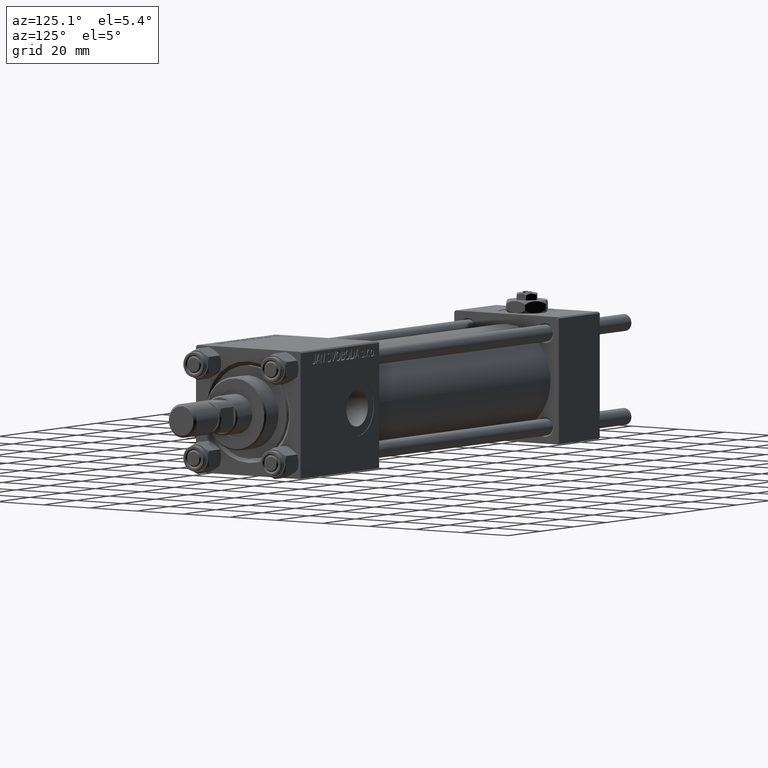
[diagram: clean part render]
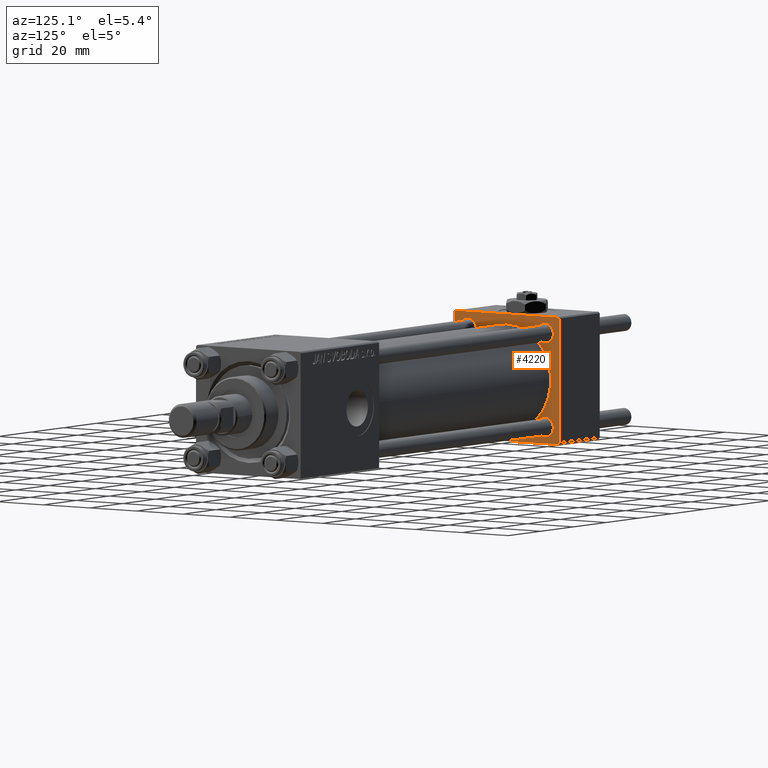
[diagram: same view with one face highlighted and labeled with its STEP entity id]
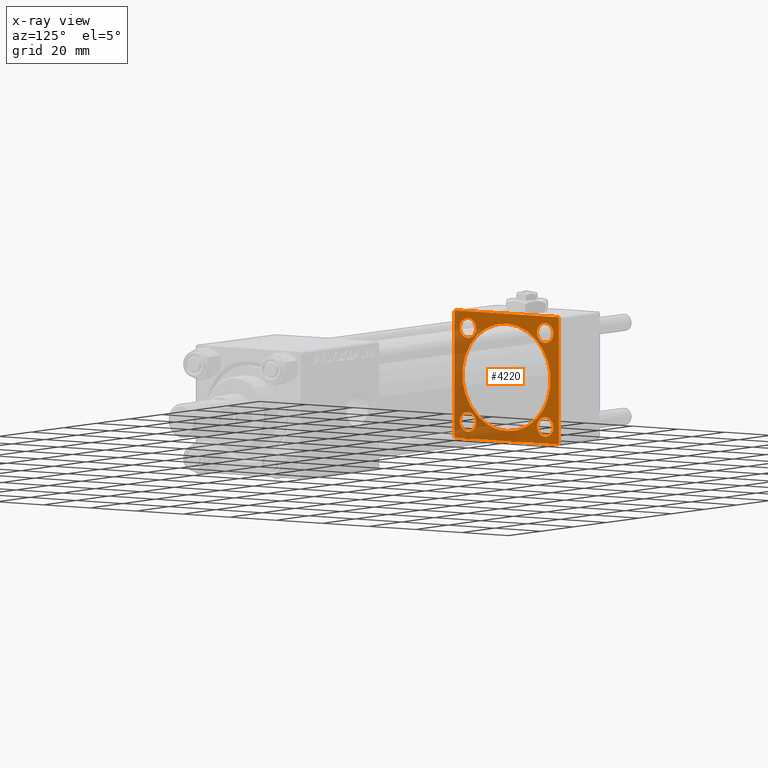
[diagram: x-ray of the same camera — body ghosted, the highlighted face saturated]
A machine part, auxiliary view. The second image highlights one B-rep face of the part: STEP entity #4220.
The next image is the same camera in x-ray: the body ghosted, the highlighted face saturated — about 38% of this face is hidden behind the body in this view.
In plain terms, the highlighted planar face has unit normal (-1, 0, 0).
Its self-contained STEP definition (entity closure, byte-faithful):
#280 = EDGE_LOOP ( 'NONE', ( #12383, #11979 ) ) ;
#374 = FACE_BOUND ( 'NONE', #43989, .T. ) ;
#496 = CARTESIAN_POINT ( 'NONE',  ( 25.00000000000000000, 22.50000000000000000, 22.50000000000000355 ) ) ;
#846 = VERTEX_POINT ( 'NONE', #34807 ) ;
#862 = ORIENTED_EDGE ( 'NONE', *, *, #11268, .T. ) ;
#982 = DIRECTION ( 'NONE',  ( 0.000000000000000000, 0.000000000000000000, 1.000000000000000000 ) ) ;
#1336 = AXIS2_PLACEMENT_3D ( 'NONE', #20836, #17651, #37419 ) ;
#1665 = AXIS2_PLACEMENT_3D ( 'NONE', #38598, #34899, #13846 ) ;
#2818 = VERTEX_POINT ( 'NONE', #5924 ) ;
#3339 = DIRECTION ( 'NONE',  ( 0.000000000000000000, 0.000000000000000000, 1.000000000000000000 ) ) ;
#3844 = ORIENTED_EDGE ( 'NONE', *, *, #43482, .T. ) ;
#3986 = VECTOR ( 'NONE', #14961, 1000.000000000000000 ) ;
#4042 = DIRECTION ( 'NONE',  ( -0.000000000000000000, 0.000000000000000000, 1.000000000000000000 ) ) ;
#4220 = ADVANCED_FACE ( 'NONE', ( #16174, #51979, #8540, #44875, #374, #24607 ), #28019, .F. ) ;
#4235 = CARTESIAN_POINT ( 'NONE',  ( 25.00000000000000000, 16.59999999999999787, 16.60000000000000497 ) ) ;
#4548 = EDGE_LOOP ( 'NONE', ( #46990, #14399 ) ) ;
#4921 = DIRECTION ( 'NONE',  ( -1.000000000000000000, 0.000000000000000000, -0.000000000000000000 ) ) ;
#5239 = EDGE_CURVE ( 'NONE', #22824, #40352, #10704, .T. ) ;
#5684 = AXIS2_PLACEMENT_3D ( 'NONE', #37840, #17557, #46519 ) ;
#5924 = CARTESIAN_POINT ( 'NONE',  ( 25.00000000000000000, -16.59999999999999076, -13.10000000000003162 ) ) ;
#6034 = CARTESIAN_POINT ( 'NONE',  ( 25.00000000000000000, 16.59999999999999787, 13.10000000000000142 ) ) ;
#6750 = VERTEX_POINT ( 'NONE', #8268 ) ;
#6930 = VERTEX_POINT ( 'NONE', #43768 ) ;
#7306 = AXIS2_PLACEMENT_3D ( 'NONE', #40143, #16431, #4042 ) ;
#7399 = DIRECTION ( 'NONE',  ( -1.000000000000000000, 0.000000000000000000, -0.000000000000000000 ) ) ;
#8268 = CARTESIAN_POINT ( 'NONE',  ( 24.99999999999999289, 2.326828918379970970E-15, -19.00000000000000000 ) ) ;
#8282 = DIRECTION ( 'NONE',  ( 0.000000000000000000, 0.000000000000000000, 1.000000000000000000 ) ) ;
#8540 = FACE_BOUND ( 'NONE', #4548, .T. ) ;
#9147 = CARTESIAN_POINT ( 'NONE',  ( 25.00000000000000000, -16.59999999999999076, -16.60000000000000853 ) ) ;
#9365 = CARTESIAN_POINT ( 'NONE',  ( 25.00000000000000000, 21.99999999999999289, 22.50000000000000355 ) ) ;
#9406 = DIRECTION ( 'NONE',  ( 0.000000000000000000, -0.7071067811865474617, 0.7071067811865474617 ) ) ;
#9698 = CARTESIAN_POINT ( 'NONE',  ( 24.99999999999999289, 0.000000000000000000, 19.00000000000000000 ) ) ;
#9810 = EDGE_CURVE ( 'NONE', #40352, #22824, #47002, .T. ) ;
#9893 = ORIENTED_EDGE ( 'NONE', *, *, #5239, .T. ) ;
#10703 = EDGE_LOOP ( 'NONE', ( #37130, #3844, #21534, #862, #15850, #15481, #21704, #33753 ) ) ;
#10704 = CIRCLE ( 'NONE', #40141, 3.500000000000003109 ) ;
#11268 = EDGE_CURVE ( 'NONE', #13096, #47992, #21769, .T. ) ;
#11404 = CARTESIAN_POINT ( 'NONE',  ( 25.00000000000000000, 22.50000000000000000, -21.99999999999998224 ) ) ;
#11851 = ORIENTED_EDGE ( 'NONE', *, *, #20076, .T. ) ;
#11979 = ORIENTED_EDGE ( 'NONE', *, *, #37110, .T. ) ;
#12383 = ORIENTED_EDGE ( 'NONE', *, *, #27742, .T. ) ;
#12876 = CIRCLE ( 'NONE', #17082, 3.499999999999978684 ) ;
#13096 = VERTEX_POINT ( 'NONE', #26777 ) ;
#13625 = CIRCLE ( 'NONE', #43061, 3.500000000000003109 ) ;
#13846 = DIRECTION ( 'NONE',  ( 0.000000000000000000, 0.000000000000000000, 1.000000000000000000 ) ) ;
#14028 = DIRECTION ( 'NONE',  ( 0.000000000000000000, 0.000000000000000000, -1.000000000000000000 ) ) ;
#14399 = ORIENTED_EDGE ( 'NONE', *, *, #21898, .T. ) ;
#14953 = CARTESIAN_POINT ( 'NONE',  ( 25.00000000000000000, -22.50000000000000000, 22.00000000000000000 ) ) ;
#14961 = DIRECTION ( 'NONE',  ( 0.000000000000000000, -1.000000000000000000, -2.312964634635742957E-16 ) ) ;
#15201 = DIRECTION ( 'NONE',  ( -1.000000000000000000, 0.000000000000000000, -0.000000000000000000 ) ) ;
#15257 = DIRECTION ( 'NONE',  ( 0.000000000000000000, 0.000000000000000000, -1.000000000000000000 ) ) ;
#15293 = VERTEX_POINT ( 'NONE', #14953 ) ;
#15481 = ORIENTED_EDGE ( 'NONE', *, *, #36544, .T. ) ;
#15771 = VERTEX_POINT ( 'NONE', #22799 ) ;
#15826 = DIRECTION ( 'NONE',  ( 0.000000000000000000, 0.000000000000000000, 1.000000000000000000 ) ) ;
#15850 = ORIENTED_EDGE ( 'NONE', *, *, #31511, .T. ) ;
#16174 = FACE_BOUND ( 'NONE', #280, .T. ) ;
#16296 = LINE ( 'NONE', #496, #26524 ) ;
#16322 = VERTEX_POINT ( 'NONE', #26305 ) ;
#16431 = DIRECTION ( 'NONE',  ( -1.000000000000000000, 0.000000000000000000, -0.000000000000000000 ) ) ;
#17082 = AXIS2_PLACEMENT_3D ( 'NONE', #19923, #15201, #3339 ) ;
#17291 = CARTESIAN_POINT ( 'NONE',  ( 25.00000000000000000, 21.99999999999999289, 22.50000000000000355 ) ) ;
#17557 = DIRECTION ( 'NONE',  ( -1.000000000000000000, 0.000000000000000000, -0.000000000000000000 ) ) ;
#17651 = DIRECTION ( 'NONE',  ( -1.000000000000000000, 0.000000000000000000, -0.000000000000000000 ) ) ;
#18314 = DIRECTION ( 'NONE',  ( -1.000000000000000000, 0.000000000000000000, -0.000000000000000000 ) ) ;
#18632 = EDGE_LOOP ( 'NONE', ( #49992, #9893 ) ) ;
#18653 = CIRCLE ( 'NONE', #47254, 3.500000000000003109 ) ;
#18960 = ORIENTED_EDGE ( 'NONE', *, *, #27698, .F. ) ;
#19219 = VERTEX_POINT ( 'NONE', #9698 ) ;
#19477 = DIRECTION ( 'NONE',  ( 0.000000000000000000, 0.000000000000000000, 1.000000000000000000 ) ) ;
#19923 = CARTESIAN_POINT ( 'NONE',  ( 25.00000000000000000, -16.59999999999999076, 16.60000000000000853 ) ) ;
#19999 = DIRECTION ( 'NONE',  ( -1.000000000000000000, 0.000000000000000000, -0.000000000000000000 ) ) ;
#20076 = EDGE_CURVE ( 'NONE', #6930, #50912, #18653, .T. ) ;
#20146 = VERTEX_POINT ( 'NONE', #32126 ) ;
#20640 = LINE ( 'NONE', #36720, #21524 ) ;
#20749 = EDGE_CURVE ( 'NONE', #50912, #6930, #13625, .T. ) ;
#20836 = CARTESIAN_POINT ( 'NONE',  ( 25.00000000000000000, -16.59999999999999076, -16.60000000000000853 ) ) ;
#20966 = AXIS2_PLACEMENT_3D ( 'NONE', #43727, #4921, #982 ) ;
#21474 = CIRCLE ( 'NONE', #24823, 19.00000000000000000 ) ;
#21524 = VECTOR ( 'NONE', #14028, 1000.000000000000000 ) ;
#21534 = ORIENTED_EDGE ( 'NONE', *, *, #37636, .F. ) ;
#21704 = ORIENTED_EDGE ( 'NONE', *, *, #26943, .T. ) ;
#21769 = LINE ( 'NONE', #17291, #26899 ) ;
#21898 = EDGE_CURVE ( 'NONE', #846, #32644, #12876, .T. ) ;
#22607 = LINE ( 'NONE', #37898, #3986 ) ;
#22799 = CARTESIAN_POINT ( 'NONE',  ( 25.00000000000000000, 22.50000000000000000, -21.99999999999996803 ) ) ;
#22818 = EDGE_LOOP ( 'NONE', ( #11851, #44219 ) ) ;
#22824 = VERTEX_POINT ( 'NONE', #47075 ) ;
#22886 = CARTESIAN_POINT ( 'NONE',  ( 25.00000000000000000, -16.59999999999999076, -20.09999999999998366 ) ) ;
#23430 = VECTOR ( 'NONE', #23522, 1000.000000000000000 ) ;
#23522 = DIRECTION ( 'NONE',  ( -0.000000000000000000, 0.7071067811865426878, 0.7071067811865524577 ) ) ;
#23951 = CARTESIAN_POINT ( 'NONE',  ( 25.00000000000000000, 16.59999999999999787, -16.60000000000000497 ) ) ;
#24497 = VECTOR ( 'NONE', #30263, 1000.000000000000000 ) ;
#24607 = FACE_OUTER_BOUND ( 'NONE', #10703, .T. ) ;
#24823 = AXIS2_PLACEMENT_3D ( 'NONE', #26886, #35297, #38221 ) ;
#24998 = VECTOR ( 'NONE', #38317, 999.9999999999998863 ) ;
#26305 = CARTESIAN_POINT ( 'NONE',  ( 25.00000000000000000, -22.50000000000000000, -21.99999999999997158 ) ) ;
#26524 = VECTOR ( 'NONE', #32364, 1000.000000000000000 ) ;
#26777 = CARTESIAN_POINT ( 'NONE',  ( 25.00000000000000000, 22.50000000000000000, 21.99999999999999645 ) ) ;
#26886 = CARTESIAN_POINT ( 'NONE',  ( 24.99999999999999289, 0.000000000000000000, 0.000000000000000000 ) ) ;
#26899 = VECTOR ( 'NONE', #9406, 1000.000000000000114 ) ;
#26943 = EDGE_CURVE ( 'NONE', #15293, #16322, #30803, .T. ) ;
#27698 = EDGE_CURVE ( 'NONE', #19219, #6750, #21474, .T. ) ;
#27742 = EDGE_CURVE ( 'NONE', #40524, #2818, #36601, .T. ) ;
#28019 = PLANE ( 'NONE',  #7306 ) ;
#28405 = CIRCLE ( 'NONE', #5684, 3.499999999999978684 ) ;
#28592 = CIRCLE ( 'NONE', #1665, 19.00000000000000000 ) ;
#29028 = AXIS2_PLACEMENT_3D ( 'NONE', #9147, #44708, #33374 ) ;
#29894 = LINE ( 'NONE', #45966, #24998 ) ;
#30263 = DIRECTION ( 'NONE',  ( 0.000000000000000000, 0.7071067811865426878, -0.7071067811865524577 ) ) ;
#30545 = CARTESIAN_POINT ( 'NONE',  ( 25.00000000000000000, -22.50000000000000000, 22.50000000000000000 ) ) ;
#30764 = CIRCLE ( 'NONE', #1336, 3.499999999999975131 ) ;
#30803 = LINE ( 'NONE', #30545, #43273 ) ;
#31427 = LINE ( 'NONE', #11404, #23430 ) ;
#31511 = EDGE_CURVE ( 'NONE', #47992, #20146, #16296, .T. ) ;
#32126 = CARTESIAN_POINT ( 'NONE',  ( 25.00000000000000000, -21.99999999999997868, 22.50000000000000000 ) ) ;
#32364 = DIRECTION ( 'NONE',  ( 0.000000000000000000, -1.000000000000000000, -7.709882115452476934E-17 ) ) ;
#32644 = VERTEX_POINT ( 'NONE', #44934 ) ;
#33374 = DIRECTION ( 'NONE',  ( 0.000000000000000000, 0.000000000000000000, 1.000000000000000000 ) ) ;
#33753 = ORIENTED_EDGE ( 'NONE', *, *, #49894, .T. ) ;
#34807 = CARTESIAN_POINT ( 'NONE',  ( 25.00000000000000000, -16.59999999999999076, 20.09999999999998721 ) ) ;
#34899 = DIRECTION ( 'NONE',  ( 1.000000000000000000, -0.000000000000000000, 0.000000000000000000 ) ) ;
#35246 = CARTESIAN_POINT ( 'NONE',  ( 25.00000000000000000, -21.99999999999998579, -22.50000000000000711 ) ) ;
#35297 = DIRECTION ( 'NONE',  ( 1.000000000000000000, -0.000000000000000000, 0.000000000000000000 ) ) ;
#35575 = CARTESIAN_POINT ( 'NONE',  ( 25.00000000000000000, -21.99999999999997158, -22.50000000000000711 ) ) ;
#36544 = EDGE_CURVE ( 'NONE', #20146, #15293, #29894, .T. ) ;
#36601 = CIRCLE ( 'NONE', #29028, 3.499999999999975131 ) ;
#36720 = CARTESIAN_POINT ( 'NONE',  ( 25.00000000000000000, 22.50000000000000000, 22.50000000000000355 ) ) ;
#37110 = EDGE_CURVE ( 'NONE', #2818, #40524, #30764, .T. ) ;
#37130 = ORIENTED_EDGE ( 'NONE', *, *, #41689, .F. ) ;
#37419 = DIRECTION ( 'NONE',  ( 0.000000000000000000, 0.000000000000000000, 1.000000000000000000 ) ) ;
#37636 = EDGE_CURVE ( 'NONE', #13096, #15771, #20640, .T. ) ;
#37840 = CARTESIAN_POINT ( 'NONE',  ( 25.00000000000000000, -16.59999999999999076, 16.60000000000000853 ) ) ;
#37898 = CARTESIAN_POINT ( 'NONE',  ( 25.00000000000000000, 22.50000000000000000, -22.49999999999999645 ) ) ;
#38221 = DIRECTION ( 'NONE',  ( 0.000000000000000000, 0.000000000000000000, 1.000000000000000000 ) ) ;
#38317 = DIRECTION ( 'NONE',  ( -0.000000000000000000, -0.7071067811865525687, -0.7071067811865425767 ) ) ;
#38598 = CARTESIAN_POINT ( 'NONE',  ( 24.99999999999999289, 0.000000000000000000, 0.000000000000000000 ) ) ;
#38774 = CARTESIAN_POINT ( 'NONE',  ( 25.00000000000000000, 21.99999999999999289, -22.49999999999999645 ) ) ;
#40054 = VERTEX_POINT ( 'NONE', #35575 ) ;
#40141 = AXIS2_PLACEMENT_3D ( 'NONE', #4235, #7399, #15826 ) ;
#40143 = CARTESIAN_POINT ( 'NONE',  ( 25.00000000000000000, 0.000000000000000000, 0.000000000000000000 ) ) ;
#40352 = VERTEX_POINT ( 'NONE', #6034 ) ;
#40524 = VERTEX_POINT ( 'NONE', #22886 ) ;
#41689 = EDGE_CURVE ( 'NONE', #49227, #40054, #22607, .T. ) ;
#42118 = EDGE_CURVE ( 'NONE', #32644, #846, #28405, .T. ) ;
#43061 = AXIS2_PLACEMENT_3D ( 'NONE', #50180, #18314, #8282 ) ;
#43273 = VECTOR ( 'NONE', #15257, 1000.000000000000000 ) ;
#43482 = EDGE_CURVE ( 'NONE', #49227, #15771, #31427, .T. ) ;
#43727 = CARTESIAN_POINT ( 'NONE',  ( 25.00000000000000000, 16.59999999999999787, 16.60000000000000497 ) ) ;
#43768 = CARTESIAN_POINT ( 'NONE',  ( 25.00000000000000000, 16.59999999999999787, -20.10000000000000853 ) ) ;
#43989 = EDGE_LOOP ( 'NONE', ( #18960, #48124 ) ) ;
#44219 = ORIENTED_EDGE ( 'NONE', *, *, #20749, .T. ) ;
#44708 = DIRECTION ( 'NONE',  ( -1.000000000000000000, 0.000000000000000000, -0.000000000000000000 ) ) ;
#44875 = FACE_BOUND ( 'NONE', #18632, .T. ) ;
#44934 = CARTESIAN_POINT ( 'NONE',  ( 25.00000000000000000, -16.59999999999999076, 13.10000000000002807 ) ) ;
#45966 = CARTESIAN_POINT ( 'NONE',  ( 25.00000000000000000, -22.50000000000000000, 22.00000000000000000 ) ) ;
#46519 = DIRECTION ( 'NONE',  ( 0.000000000000000000, 0.000000000000000000, 1.000000000000000000 ) ) ;
#46581 = LINE ( 'NONE', #35246, #24497 ) ;
#46781 = EDGE_CURVE ( 'NONE', #6750, #19219, #28592, .T. ) ;
#46990 = ORIENTED_EDGE ( 'NONE', *, *, #42118, .T. ) ;
#47002 = CIRCLE ( 'NONE', #20966, 3.500000000000003109 ) ;
#47075 = CARTESIAN_POINT ( 'NONE',  ( 25.00000000000000000, 16.59999999999999787, 20.10000000000000853 ) ) ;
#47254 = AXIS2_PLACEMENT_3D ( 'NONE', #23951, #19999, #19477 ) ;
#47992 = VERTEX_POINT ( 'NONE', #9365 ) ;
#48124 = ORIENTED_EDGE ( 'NONE', *, *, #46781, .F. ) ;
#49227 = VERTEX_POINT ( 'NONE', #38774 ) ;
#49894 = EDGE_CURVE ( 'NONE', #16322, #40054, #46581, .T. ) ;
#49992 = ORIENTED_EDGE ( 'NONE', *, *, #9810, .T. ) ;
#50180 = CARTESIAN_POINT ( 'NONE',  ( 25.00000000000000000, 16.59999999999999787, -16.60000000000000497 ) ) ;
#50912 = VERTEX_POINT ( 'NONE', #52031 ) ;
#51979 = FACE_BOUND ( 'NONE', #22818, .T. ) ;
#52031 = CARTESIAN_POINT ( 'NONE',  ( 25.00000000000000000, 16.59999999999999787, -13.10000000000000142 ) ) ;